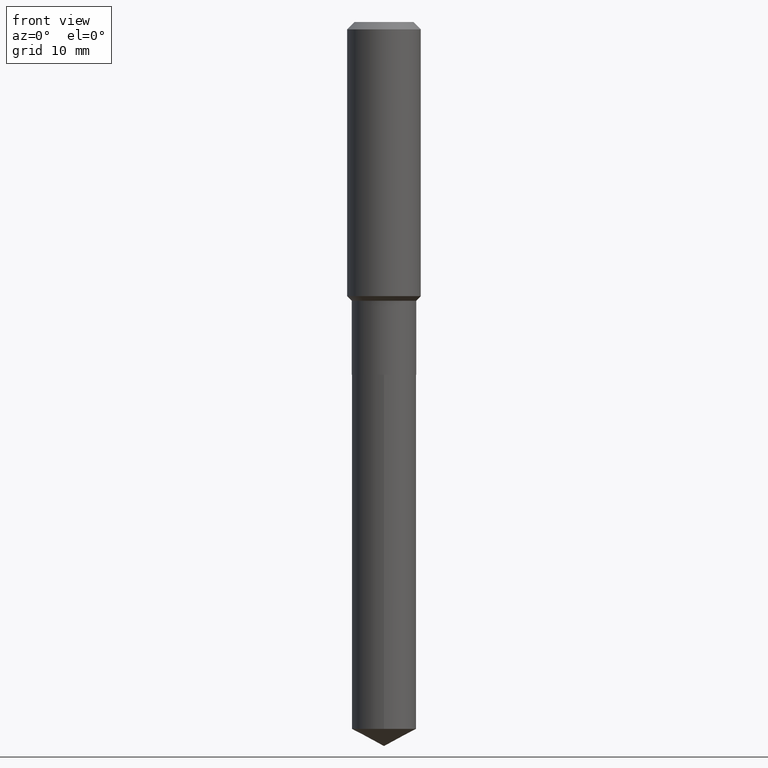
[diagram: clean part render]
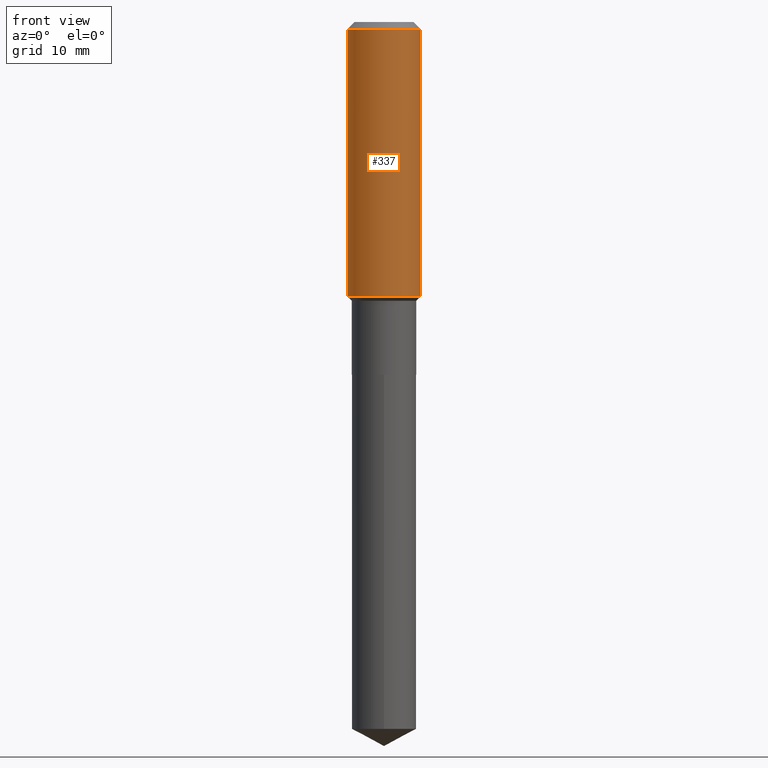
[diagram: same view with one face highlighted and labeled with its STEP entity id]
A machine part, front view. The second image highlights one B-rep face of the part: STEP entity #337.
In plain terms, the highlighted cylindrical surface (partial cylindrical patch) has radius 5.9995 mm, axis along (-0, 0, 1).
Its self-contained STEP definition (entity closure, byte-faithful):
#7 = DIRECTION ( 'NONE',  ( 1.000000000000000000, -6.982962677686266711E-15, 0.000000000000000000 ) ) ;
#11 = CIRCLE ( 'NONE', #295, 0.2362000000000002153 ) ;
#14 = CARTESIAN_POINT ( 'NONE',  ( 0.2361999999999999933, -1.814313362916447440E-15, -0.04724000000000028177 ) ) ;
#27 = EDGE_LOOP ( 'NONE', ( #209, #400, #486, #407 ) ) ;
#39 = CIRCLE ( 'NONE', #146, 0.2361999999999999933 ) ;
#41 = DIRECTION ( 'NONE',  ( -2.445468806185136877E-29, 3.491481338843145188E-15, 1.000000000000000000 ) ) ;
#146 = AXIS2_PLACEMENT_3D ( 'NONE', #465, #345, #7 ) ;
#147 = CARTESIAN_POINT ( 'NONE',  ( 4.301335083199035081E-29, -6.141166526891206646E-15, -1.758899999999999464 ) ) ;
#148 = LINE ( 'NONE', #215, #455 ) ;
#150 = CARTESIAN_POINT ( 'NONE',  ( -0.2362000000000002153, -4.462864585025847885E-15, -1.758899999999999464 ) ) ;
#166 = EDGE_CURVE ( 'NONE', #171, #365, #11, .T. ) ;
#171 = VERTEX_POINT ( 'NONE', #150 ) ;
#180 = CARTESIAN_POINT ( 'NONE',  ( 0.000000000000000000, 0.000000000000000000, 0.000000000000000000 ) ) ;
#209 = ORIENTED_EDGE ( 'NONE', *, *, #364, .F. ) ;
#215 = CARTESIAN_POINT ( 'NONE',  ( 0.2362000000000001043, -1.649375784469496920E-15, 1.151752954443000508E-29 ) ) ;
#217 = DIRECTION ( 'NONE',  ( -2.445468806185136597E-29, 3.491481338843145583E-15, 1.000000000000000000 ) ) ;
#218 = AXIS2_PLACEMENT_3D ( 'NONE', #180, #470, #348 ) ;
#260 = CARTESIAN_POINT ( 'NONE',  ( -0.2362000000000001043, 1.678301941865357380E-15, -1.161852468318209317E-29 ) ) ;
#270 = CYLINDRICAL_SURFACE ( 'NONE', #218, 0.2362000000000001043 ) ;
#273 = FACE_OUTER_BOUND ( 'NONE', #27, .T. ) ;
#295 = AXIS2_PLACEMENT_3D ( 'NONE', #147, #217, #340 ) ;
#301 = CARTESIAN_POINT ( 'NONE',  ( -0.2361999999999999933, -1.474750110803721400E-15, -0.04724000000000028177 ) ) ;
#336 = EDGE_CURVE ( 'NONE', #363, #409, #39, .T. ) ;
#337 = ADVANCED_FACE ( 'NONE', ( #273 ), #270, .T. ) ;
#340 = DIRECTION ( 'NONE',  ( 1.000000000000000000, -6.982962677686266711E-15, 0.000000000000000000 ) ) ;
#345 = DIRECTION ( 'NONE',  ( -2.445468806185136597E-29, 3.491481338843145583E-15, 1.000000000000000000 ) ) ;
#348 = DIRECTION ( 'NONE',  ( 1.000000000000000000, -6.982962677686266711E-15, 4.876176775795935793E-29 ) ) ;
#363 = VERTEX_POINT ( 'NONE', #301 ) ;
#364 = EDGE_CURVE ( 'NONE', #171, #363, #464, .T. ) ;
#365 = VERTEX_POINT ( 'NONE', #474 ) ;
#400 = ORIENTED_EDGE ( 'NONE', *, *, #166, .T. ) ;
#405 = VECTOR ( 'NONE', #41, 39.37007874015748143 ) ;
#407 = ORIENTED_EDGE ( 'NONE', *, *, #336, .F. ) ;
#409 = VERTEX_POINT ( 'NONE', #14 ) ;
#420 = DIRECTION ( 'NONE',  ( -2.445468806185136877E-29, 3.491481338843145188E-15, 1.000000000000000000 ) ) ;
#455 = VECTOR ( 'NONE', #420, 39.37007874015748143 ) ;
#464 = LINE ( 'NONE', #260, #405 ) ;
#465 = CARTESIAN_POINT ( 'NONE',  ( 1.155239464041865506E-30, -1.649375784469511859E-16, -0.04724000000000028177 ) ) ;
#470 = DIRECTION ( 'NONE',  ( -2.445468806185136597E-29, 3.491481338843145583E-15, 1.000000000000000000 ) ) ;
#474 = CARTESIAN_POINT ( 'NONE',  ( 0.2362000000000002153, -7.790542311360703960E-15, -1.758899999999999464 ) ) ;
#486 = ORIENTED_EDGE ( 'NONE', *, *, #489, .T. ) ;
#489 = EDGE_CURVE ( 'NONE', #365, #409, #148, .T. ) ;